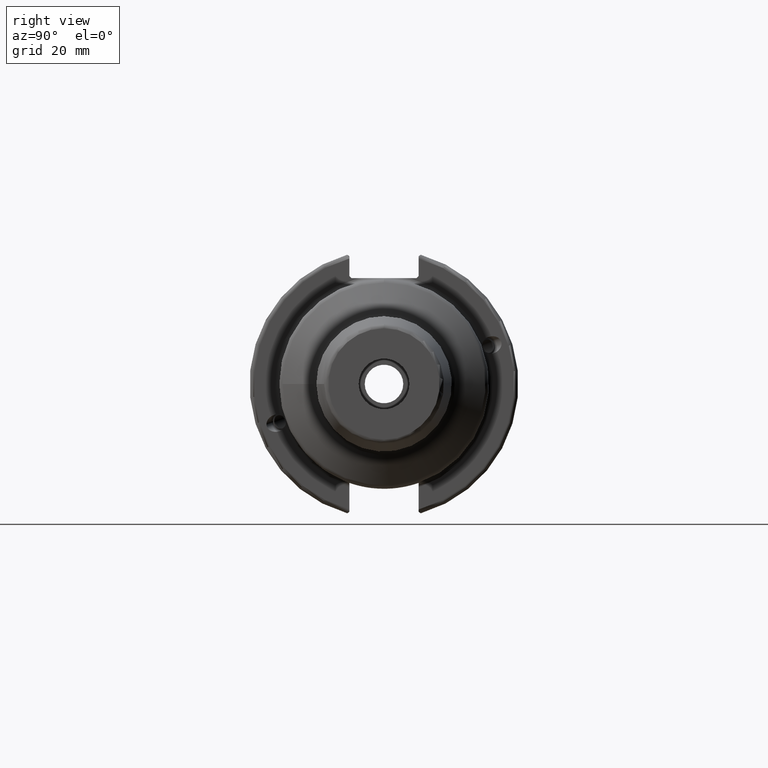
[diagram: clean part render]
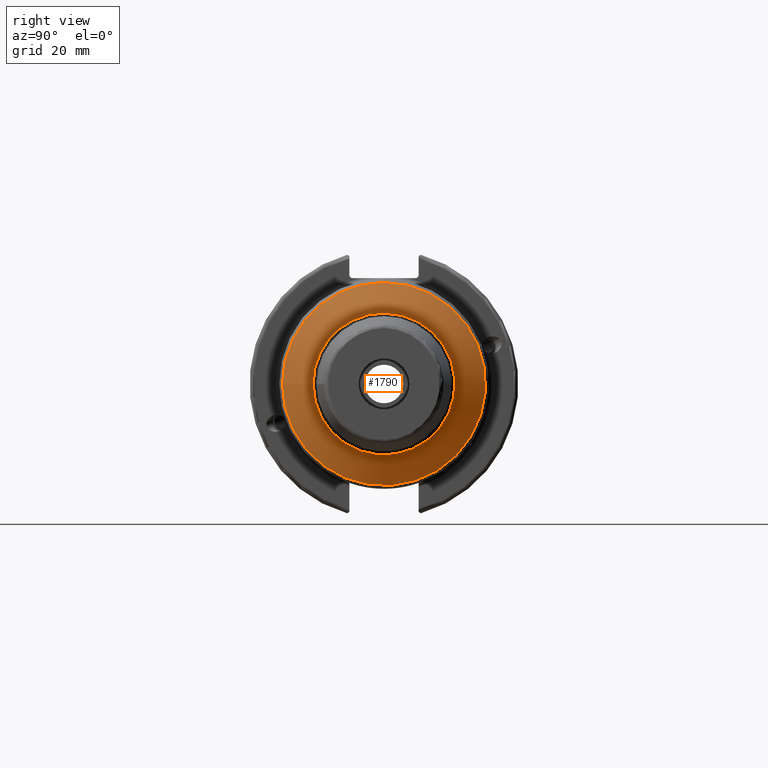
[diagram: same view with one face highlighted and labeled with its STEP entity id]
A machine part, right view. The second image highlights one B-rep face of the part: STEP entity #1790.
In plain terms, the highlighted conical surface has half-angle 60 deg.
Its self-contained STEP definition (entity closure, byte-faithful):
#80=CONICAL_SURFACE('',#1942,20.375,1.0471975511966);
#178=FACE_OUTER_BOUND('',#287,.T.);
#287=EDGE_LOOP('',(#1225,#1226,#1227,#1228,#1229,#1230));
#401=LINE('',#2819,#495);
#495=VECTOR('',#2236,20.375);
#602=CIRCLE('',#1937,16.75);
#606=CIRCLE('',#1941,16.75);
#607=CIRCLE('',#1943,24.);
#608=CIRCLE('',#1944,24.);
#725=VERTEX_POINT('',#2808);
#726=VERTEX_POINT('',#2809);
#729=VERTEX_POINT('',#2818);
#730=VERTEX_POINT('',#2820);
#918=EDGE_CURVE('',#725,#726,#602,.T.);
#922=EDGE_CURVE('',#726,#725,#606,.T.);
#923=EDGE_CURVE('',#725,#729,#401,.T.);
#924=EDGE_CURVE('',#730,#729,#607,.T.);
#925=EDGE_CURVE('',#729,#730,#608,.T.);
#1225=ORIENTED_EDGE('',*,*,#918,.F.);
#1226=ORIENTED_EDGE('',*,*,#923,.T.);
#1227=ORIENTED_EDGE('',*,*,#924,.F.);
#1228=ORIENTED_EDGE('',*,*,#925,.F.);
#1229=ORIENTED_EDGE('',*,*,#923,.F.);
#1230=ORIENTED_EDGE('',*,*,#922,.F.);
#1790=ADVANCED_FACE('',(#178),#80,.T.);
#1937=AXIS2_PLACEMENT_3D('',#2810,#2224,#2225);
#1941=AXIS2_PLACEMENT_3D('',#2816,#2232,#2233);
#1942=AXIS2_PLACEMENT_3D('',#2817,#2234,#2235);
#1943=AXIS2_PLACEMENT_3D('',#2821,#2237,#2238);
#1944=AXIS2_PLACEMENT_3D('',#2822,#2239,#2240);
#2224=DIRECTION('center_axis',(1.,0.,0.));
#2225=DIRECTION('ref_axis',(0.,-1.,3.06161699786838E-17));
#2232=DIRECTION('center_axis',(1.,0.,0.));
#2233=DIRECTION('ref_axis',(0.,-1.,3.06161699786838E-17));
#2234=DIRECTION('center_axis',(-1.,0.,0.));
#2235=DIRECTION('ref_axis',(0.,1.,0.));
#2236=DIRECTION('',(-0.499999999999999,-0.866025403784439,-1.06057523872491E-16));
#2237=DIRECTION('center_axis',(-1.,0.,0.));
#2238=DIRECTION('ref_axis',(0.,-1.,3.06161699786838E-17));
#2239=DIRECTION('center_axis',(-1.,0.,0.));
#2240=DIRECTION('ref_axis',(0.,-1.,3.06161699786838E-17));
#2808=CARTESIAN_POINT('',(48.5669872981078,-16.75,-2.05128338857182E-15));
#2809=CARTESIAN_POINT('',(48.5669872981078,-2.05128338857182E-15,16.75));
#2810=CARTESIAN_POINT('Origin',(48.5669872981078,0.,-2.56410423571477E-15));
#2816=CARTESIAN_POINT('Origin',(48.5669872981078,0.,-2.56410423571477E-15));
#2817=CARTESIAN_POINT('Origin',(46.4740925722954,0.,0.));
#2818=CARTESIAN_POINT('',(44.381197846483,-24.,-2.93915231795365E-15));
#2819=CARTESIAN_POINT('',(46.4740925722954,-20.375,-2.49521785326273E-15));
#2820=CARTESIAN_POINT('',(44.381197846483,-2.93915231795365E-15,24.));
#2821=CARTESIAN_POINT('Origin',(44.381197846483,0.,-3.67394039744206E-15));
#2822=CARTESIAN_POINT('Origin',(44.381197846483,0.,-3.67394039744206E-15));